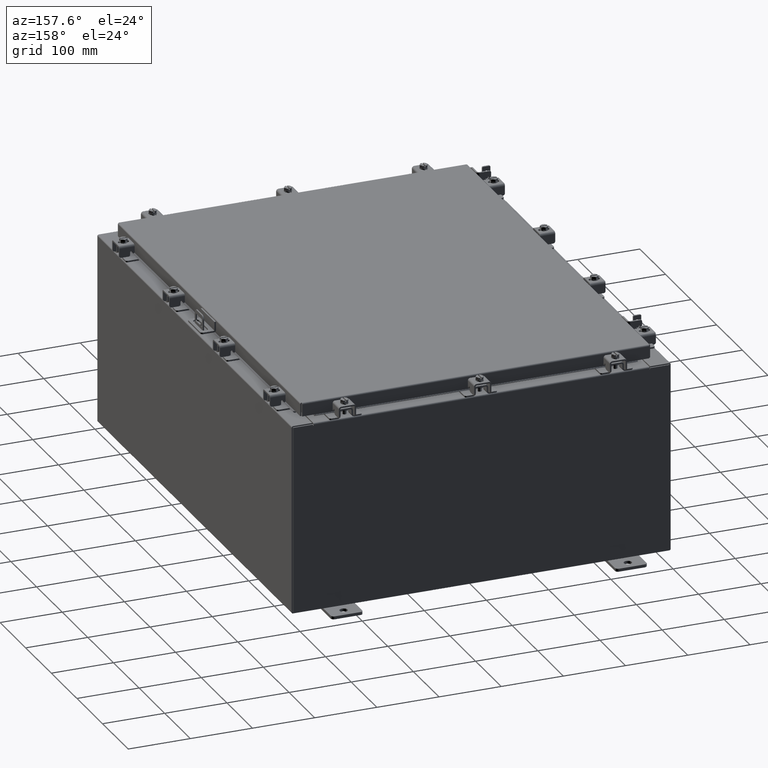
[diagram: clean part render]
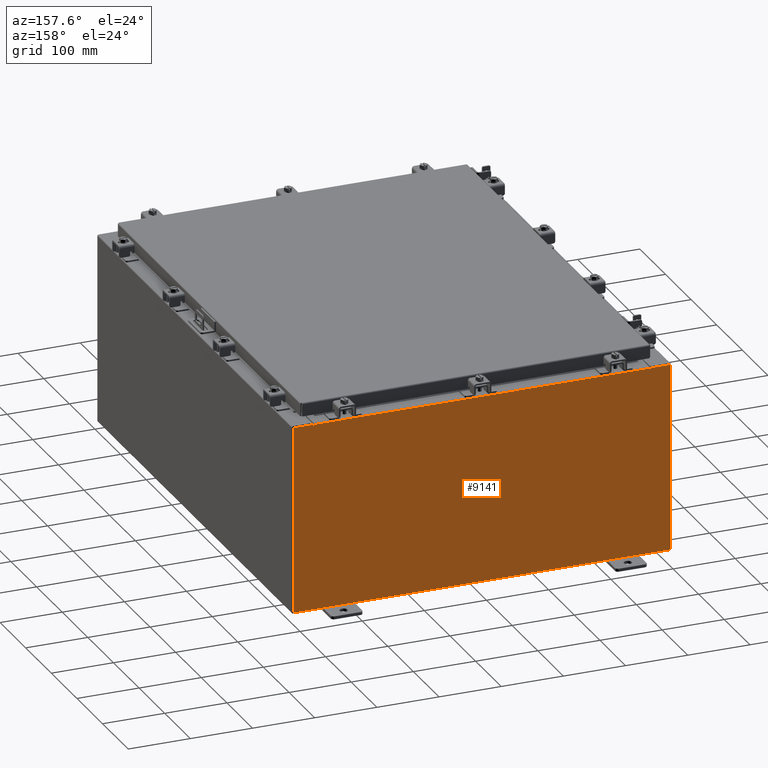
[diagram: same view with one face highlighted and labeled with its STEP entity id]
A machine part, auxiliary view. The second image highlights one B-rep face of the part: STEP entity #9141.
In plain terms, the highlighted planar face has unit normal (0, -1, 0).
Its self-contained STEP definition (entity closure, byte-faithful):
#49 = DIRECTION ( 'NONE',  ( 0.0000000000000000000, 0.0000000000000000000, -1.000000000000000000 ) ) ;
#130 = VERTEX_POINT ( 'NONE', #7364 ) ;
#267 = LINE ( 'NONE', #16587, #22915 ) ;
#386 = ORIENTED_EDGE ( 'NONE', *, *, #8773, .T. ) ;
#659 = DIRECTION ( 'NONE',  ( 0.0000000000000000000, -0.0000000000000000000, -1.000000000000000000 ) ) ;
#798 = AXIS2_PLACEMENT_3D ( 'NONE', #18411, #11390, #659 ) ;
#915 = DIRECTION ( 'NONE',  ( 0.0000000000000000000, 0.0000000000000000000, -1.000000000000000000 ) ) ;
#991 = ORIENTED_EDGE ( 'NONE', *, *, #2992, .F. ) ;
#1123 = ORIENTED_EDGE ( 'NONE', *, *, #13843, .T. ) ;
#1145 = EDGE_CURVE ( 'NONE', #6357, #11220, #22804, .T. ) ;
#1354 = VECTOR ( 'NONE', #19755, 39.37007874015748100 ) ;
#1974 = LINE ( 'NONE', #18078, #10922 ) ;
#2320 = VERTEX_POINT ( 'NONE', #9416 ) ;
#2718 = CARTESIAN_POINT ( 'NONE',  ( 11.92530000000000000, 0.0000000000000000000, 5.925300000000001800 ) ) ;
#2992 = EDGE_CURVE ( 'NONE', #11220, #10701, #20500, .T. ) ;
#3139 = VERTEX_POINT ( 'NONE', #10941 ) ;
#3767 = ORIENTED_EDGE ( 'NONE', *, *, #13663, .T. ) ;
#3939 = ORIENTED_EDGE ( 'NONE', *, *, #15821, .F. ) ;
#4032 = LINE ( 'NONE', #8490, #13565 ) ;
#4075 = CARTESIAN_POINT ( 'NONE',  ( -11.92530000000000000, 0.0000000000000000000, 5.925300000000000000 ) ) ;
#4419 = CARTESIAN_POINT ( 'NONE',  ( -10.63720000000000400, -0.0000000000000000000, 0.0000000000000000000 ) ) ;
#4603 = LINE ( 'NONE', #9154, #23086 ) ;
#4754 = AXIS2_PLACEMENT_3D ( 'NONE', #5454, #17962, #7218 ) ;
#4867 = EDGE_CURVE ( 'NONE', #21332, #6357, #8923, .T. ) ;
#5151 = ORIENTED_EDGE ( 'NONE', *, *, #6123, .F. ) ;
#5454 = CARTESIAN_POINT ( 'NONE',  ( 10.65587500000000200, 0.0000000000000000000, 5.874950000000001000 ) ) ;
#5656 = DIRECTION ( 'NONE',  ( 0.0000000000000000000, 0.0000000000000000000, -1.000000000000000000 ) ) ;
#6034 = CARTESIAN_POINT ( 'NONE',  ( 10.63720000000000400, 0.0000000000000000000, 0.0000000000000000000 ) ) ;
#6123 = EDGE_CURVE ( 'NONE', #12504, #17730, #11977, .T. ) ;
#6255 = FACE_OUTER_BOUND ( 'NONE', #19303, .T. ) ;
#6357 = VERTEX_POINT ( 'NONE', #6951 ) ;
#6559 = ORIENTED_EDGE ( 'NONE', *, *, #1145, .F. ) ;
#6607 = DIRECTION ( 'NONE',  ( 0.0000000000000000000, 0.0000000000000000000, 1.000000000000000000 ) ) ;
#6951 = CARTESIAN_POINT ( 'NONE',  ( -10.63720000000000400, -0.0000000000000000000, 5.874950000000001000 ) ) ;
#7203 = LINE ( 'NONE', #16139, #1354 ) ;
#7218 = DIRECTION ( 'NONE',  ( 0.0000000000000000000, 0.0000000000000000000, -1.000000000000000000 ) ) ;
#7364 = CARTESIAN_POINT ( 'NONE',  ( 10.67455000000000200, 0.0000000000000000000, 5.925300000000001800 ) ) ;
#8131 = CARTESIAN_POINT ( 'NONE',  ( 10.63720000000000400, 0.0000000000000000000, 5.912300000000001000 ) ) ;
#8490 = CARTESIAN_POINT ( 'NONE',  ( -11.92530000000000000, 0.0000000000000000000, 5.925300000000000000 ) ) ;
#8621 = DIRECTION ( 'NONE',  ( -1.000000000000000000, -0.0000000000000000000, -0.0000000000000000000 ) ) ;
#8773 = EDGE_CURVE ( 'NONE', #14209, #10783, #4032, .T. ) ;
#8923 = LINE ( 'NONE', #4419, #22638 ) ;
#9141 = ADVANCED_FACE ( 'NONE', ( #6255 ), #9560, .F. ) ;
#9154 = CARTESIAN_POINT ( 'NONE',  ( 10.67455000000000200, 0.0000000000000000000, 0.0000000000000000000 ) ) ;
#9176 = DIRECTION ( 'NONE',  ( -0.0000000000000000000, 1.000000000000000000, -0.0000000000000000000 ) ) ;
#9416 = CARTESIAN_POINT ( 'NONE',  ( 10.67455000000000200, 0.0000000000000000000, 5.874950000000001000 ) ) ;
#9560 = PLANE ( 'NONE',  #798 ) ;
#10106 = EDGE_CURVE ( 'NONE', #21332, #17730, #20775, .T. ) ;
#10318 = DIRECTION ( 'NONE',  ( -0.0000000000000000000, -0.0000000000000000000, 1.000000000000000000 ) ) ;
#10701 = VERTEX_POINT ( 'NONE', #12764 ) ;
#10783 = VERTEX_POINT ( 'NONE', #4075 ) ;
#10922 = VECTOR ( 'NONE', #14482, 39.37007874015748100 ) ;
#10941 = CARTESIAN_POINT ( 'NONE',  ( 11.92530000000000000, 0.0000000000000000000, -5.925299999999999100 ) ) ;
#11220 = VERTEX_POINT ( 'NONE', #14170 ) ;
#11390 = DIRECTION ( 'NONE',  ( 0.0000000000000000000, -1.000000000000000000, 0.0000000000000000000 ) ) ;
#11977 = LINE ( 'NONE', #6034, #14498 ) ;
#12418 = ORIENTED_EDGE ( 'NONE', *, *, #4867, .F. ) ;
#12504 = VERTEX_POINT ( 'NONE', #22842 ) ;
#12705 = EDGE_CURVE ( 'NONE', #22714, #3139, #1974, .T. ) ;
#12764 = CARTESIAN_POINT ( 'NONE',  ( -10.67455000000000200, 0.0000000000000000000, 5.925300000000000000 ) ) ;
#12828 = EDGE_CURVE ( 'NONE', #10783, #10701, #267, .T. ) ;
#13173 = EDGE_CURVE ( 'NONE', #2320, #12504, #22069, .T. ) ;
#13358 = ORIENTED_EDGE ( 'NONE', *, *, #13173, .F. ) ;
#13565 = VECTOR ( 'NONE', #10318, 39.37007874015748100 ) ;
#13663 = EDGE_CURVE ( 'NONE', #3139, #14209, #13670, .T. ) ;
#13670 = LINE ( 'NONE', #19371, #14233 ) ;
#13843 = EDGE_CURVE ( 'NONE', #130, #22714, #7203, .T. ) ;
#13925 = CARTESIAN_POINT ( 'NONE',  ( -10.63720000000000400, -1.707404996040164500E-016, 5.912300000000001000 ) ) ;
#14170 = CARTESIAN_POINT ( 'NONE',  ( -10.67455000000000200, 0.0000000000000000000, 5.874950000000001000 ) ) ;
#14209 = VERTEX_POINT ( 'NONE', #17145 ) ;
#14233 = VECTOR ( 'NONE', #8621, 39.37007874015748100 ) ;
#14482 = DIRECTION ( 'NONE',  ( 0.0000000000000000000, 0.0000000000000000000, -1.000000000000000000 ) ) ;
#14498 = VECTOR ( 'NONE', #20339, 39.37007874015748100 ) ;
#14901 = VECTOR ( 'NONE', #15736, 39.37007874015748100 ) ;
#15082 = ORIENTED_EDGE ( 'NONE', *, *, #10106, .T. ) ;
#15187 = VECTOR ( 'NONE', #6607, 39.37007874015748100 ) ;
#15420 = CARTESIAN_POINT ( 'NONE',  ( -10.65587500000000200, 0.0000000000000000000, 5.874950000000001000 ) ) ;
#15633 = AXIS2_PLACEMENT_3D ( 'NONE', #15420, #9176, #49 ) ;
#15736 = DIRECTION ( 'NONE',  ( 1.000000000000000000, 0.0000000000000000000, 0.0000000000000000000 ) ) ;
#15821 = EDGE_CURVE ( 'NONE', #130, #2320, #4603, .T. ) ;
#16139 = CARTESIAN_POINT ( 'NONE',  ( -11.92530000000000000, 0.0000000000000000000, 5.925300000000000000 ) ) ;
#16587 = CARTESIAN_POINT ( 'NONE',  ( -11.92530000000000000, 0.0000000000000000000, 5.925300000000000000 ) ) ;
#17145 = CARTESIAN_POINT ( 'NONE',  ( -11.92530000000000000, 0.0000000000000000000, -5.925299999999999100 ) ) ;
#17417 = ORIENTED_EDGE ( 'NONE', *, *, #12705, .T. ) ;
#17730 = VERTEX_POINT ( 'NONE', #8131 ) ;
#17962 = DIRECTION ( 'NONE',  ( -0.0000000000000000000, 1.000000000000000000, -0.0000000000000000000 ) ) ;
#18078 = CARTESIAN_POINT ( 'NONE',  ( 11.92530000000000000, 0.0000000000000000000, 5.925300000000001800 ) ) ;
#18283 = ORIENTED_EDGE ( 'NONE', *, *, #12828, .T. ) ;
#18411 = CARTESIAN_POINT ( 'NONE',  ( 0.0000000000000000000, 0.0000000000000000000, 0.0000000000000000000 ) ) ;
#19303 = EDGE_LOOP ( 'NONE', ( #991, #6559, #12418, #15082, #5151, #13358, #3939, #1123, #17417, #3767, #386, #18283 ) ) ;
#19371 = CARTESIAN_POINT ( 'NONE',  ( -11.92530000000000000, 0.0000000000000000000, -5.925299999999999100 ) ) ;
#19462 = CARTESIAN_POINT ( 'NONE',  ( -10.63720000000000400, -1.707404996040164500E-016, 5.912300000000001000 ) ) ;
#19755 = DIRECTION ( 'NONE',  ( 1.000000000000000000, 0.0000000000000000000, 4.581600452255731000E-017 ) ) ;
#20339 = DIRECTION ( 'NONE',  ( 0.0000000000000000000, 0.0000000000000000000, 1.000000000000000000 ) ) ;
#20500 = LINE ( 'NONE', #22328, #15187 ) ;
#20775 = LINE ( 'NONE', #13925, #14901 ) ;
#21332 = VERTEX_POINT ( 'NONE', #19462 ) ;
#21978 = DIRECTION ( 'NONE',  ( 1.000000000000000000, 0.0000000000000000000, 4.581600452255731000E-017 ) ) ;
#22069 = CIRCLE ( 'NONE', #4754, 0.01867499999999949400 ) ;
#22328 = CARTESIAN_POINT ( 'NONE',  ( -10.67455000000000200, -0.0000000000000000000, 0.0000000000000000000 ) ) ;
#22638 = VECTOR ( 'NONE', #915, 39.37007874015748100 ) ;
#22714 = VERTEX_POINT ( 'NONE', #2718 ) ;
#22804 = CIRCLE ( 'NONE', #15633, 0.01867499999999949400 ) ;
#22842 = CARTESIAN_POINT ( 'NONE',  ( 10.63720000000000400, 0.0000000000000000000, 5.874950000000001000 ) ) ;
#22915 = VECTOR ( 'NONE', #21978, 39.37007874015748100 ) ;
#23086 = VECTOR ( 'NONE', #5656, 39.37007874015748100 ) ;